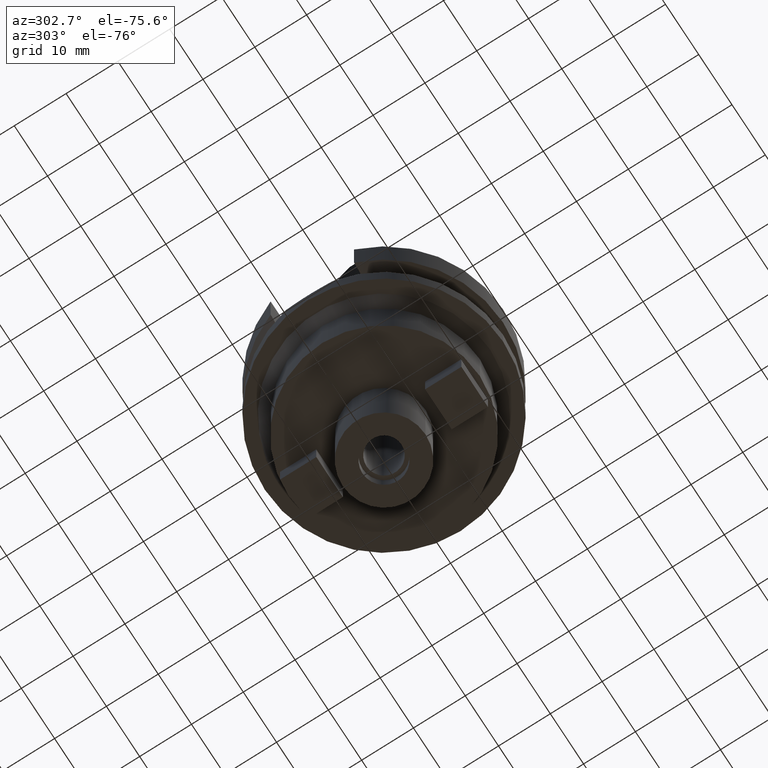
[diagram: clean part render]
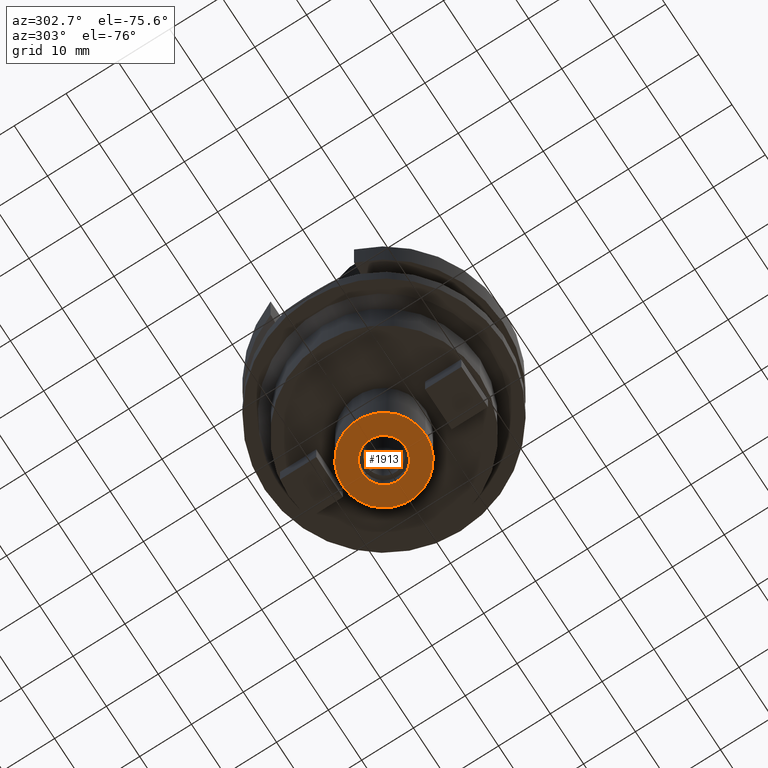
[diagram: same view with one face highlighted and labeled with its STEP entity id]
A machine part, auxiliary view. The second image highlights one B-rep face of the part: STEP entity #1913.
In plain terms, the highlighted planar face has unit normal (0, 0, -1).
Its self-contained STEP definition (entity closure, byte-faithful):
#769=CARTESIAN_POINT('',(0.E0,1.878240795852E-14,-5.1E1));
#770=DIRECTION('',(0.E0,0.E0,1.E0));
#771=DIRECTION('',(0.E0,-1.E0,0.E0));
#772=AXIS2_PLACEMENT_3D('',#769,#770,#771);
#777=CARTESIAN_POINT('',(0.E0,1.878240795852E-14,-5.1E1));
#778=DIRECTION('',(0.E0,0.E0,1.E0));
#779=DIRECTION('',(0.E0,1.E0,0.E0));
#780=AXIS2_PLACEMENT_3D('',#777,#778,#779);
#785=CARTESIAN_POINT('',(0.E0,1.878240795852E-14,-5.1E1));
#786=DIRECTION('',(0.E0,0.E0,-1.E0));
#787=DIRECTION('',(0.E0,-1.E0,0.E0));
#788=AXIS2_PLACEMENT_3D('',#785,#786,#787);
#793=CARTESIAN_POINT('',(0.E0,1.878240795852E-14,-5.1E1));
#794=DIRECTION('',(0.E0,0.E0,-1.E0));
#795=DIRECTION('',(0.E0,1.E0,0.E0));
#796=AXIS2_PLACEMENT_3D('',#793,#794,#795);
#1213=CARTESIAN_POINT('',(0.E0,4.15E0,-5.1E1));
#1214=VERTEX_POINT('',#1213);
#1215=CARTESIAN_POINT('',(0.E0,-4.15E0,-5.1E1));
#1216=VERTEX_POINT('',#1215);
#1217=CARTESIAN_POINT('',(0.E0,-8.E0,-5.1E1));
#1218=CARTESIAN_POINT('',(0.E0,8.E0,-5.1E1));
#1219=VERTEX_POINT('',#1217);
#1220=VERTEX_POINT('',#1218);
#1898=CARTESIAN_POINT('',(0.E0,0.E0,-5.1E1));
#1899=DIRECTION('',(0.E0,0.E0,-1.E0));
#1900=DIRECTION('',(0.E0,-1.E0,0.E0));
#1901=AXIS2_PLACEMENT_3D('',#1898,#1899,#1900);
#1902=PLANE('',#1901);
#1903=ORIENTED_EDGE('',*,*,#1891,.T.);
#1904=ORIENTED_EDGE('',*,*,#1880,.T.);
#1905=EDGE_LOOP('',(#1903,#1904));
#1906=FACE_OUTER_BOUND('',#1905,.F.);
#1908=ORIENTED_EDGE('',*,*,#1907,.T.);
#1910=ORIENTED_EDGE('',*,*,#1909,.T.);
#1911=EDGE_LOOP('',(#1908,#1910));
#1912=FACE_BOUND('',#1911,.F.);
#773=CIRCLE('',#772,8.E0);
#781=CIRCLE('',#780,8.E0);
#789=CIRCLE('',#788,4.15E0);
#797=CIRCLE('',#796,4.15E0);
#1880=EDGE_CURVE('',#1220,#1219,#781,.T.);
#1891=EDGE_CURVE('',#1219,#1220,#773,.T.);
#1907=EDGE_CURVE('',#1216,#1214,#789,.T.);
#1909=EDGE_CURVE('',#1214,#1216,#797,.T.);
#1913=ADVANCED_FACE('',(#1906,#1912),#1902,.T.);